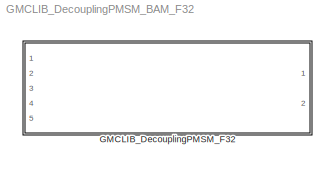
MODEL GMCLIB_DecouplingPMSM_BAM_F32
KIND model
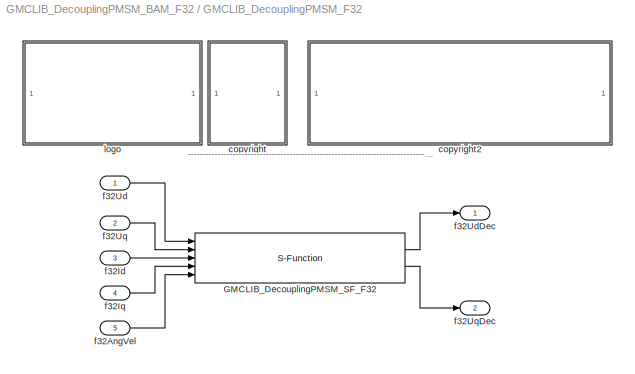
BLOCK [SubSystem] GMCLIB_DecouplingPMSM_F32
  FunctionWithSeparateData = off
  MaskCallbackString = |||
  MaskDescription = Bit accurate model of decoupling for PMSM model.
  MaskDisplay = color('black');port_label('input',1,'f32Ud');port_label('input',2,'f32Uq');port_label('input',3,'f32Id');port_label('input',4,'f32Iq');port_label('input',5,'f32AngVel');port_label('output',1,'f32UdDec');port_label('output',2,'f32UqDec');color('black');disp('GMCLIB_DecouplingPMSM_F32');color('blue');text(tX,tY, 'BAM', 'horizontalAlignment', 'center');
  MaskEnableString = on,on,on,on
  MaskHideContents = off
  MaskIconFrame = on
  MaskIconOpaque = on
  MaskIconRotate = none
  MaskIconUnits = pixels
  MaskInitialization = pos = get_param(gcb, 'Position');width = pos(3) - pos(1); height = pos(4) - pos(2);tX=width/2;tY=height*0.9;
  MaskPortRotate = default
  MaskPromptString = f32Kd|s16KdShift|f32Kq|s16KqShift
  MaskStyleString = edit,edit,edit,edit
  MaskTabNameString = ,,,
  MaskToolTipString = on,on,on,on
  MaskTunableValueString = on,on,on,on
  MaskType = GMCLIB_DecouplingPMSM_F32
  MaskValueString = f32Kd|s16KdShift|f32Kq|s16KqShift
  MaskVarAliasString = ,,,
  MaskVariables = f32Kd=@1;s16KdShift=@2;f32Kq=@3;s16KqShift=@4;
  MaskVisibilityString = on,on,on,on
  MinAlgLoopOccurrences = off
  Opaque = off
  Ports = [5, 2]
  PropExecContextOutsideSubsystem = off
  RTWSystemCode = Auto
  RequestExecContextInheritance = off
BLOCK [S-Function] GMCLIB_DecouplingPMSM_F32/GMCLIB_DecouplingPMSM_SF_F32
  EnableBusSupport = off
  FunctionName = GMCLIB_DecouplingPMSM_SF_F32
  Parameters = f32Kd,s16KdShift,f32Kq,s16KqShift
  Ports = [5, 2]
BLOCK [SubSystem] GMCLIB_DecouplingPMSM_F32/<copyright redacted>
  FunctionWithSeparateData = off
  MaskDisplay = text(10,90,'FILE:');text(10,75,'DESRIPTION:')text(10,60,'<copyright redacted>
  MaskHideContents = off
  MaskIconFrame = off
  MaskIconOpaque = on
  MaskIconRotate = none
  MaskIconUnits = pixels
  MaskPortRotate = default
  MinAlgLoopOccurrences = off
  Opaque = off
  Ports = []
  PropExecContextOutsideSubsystem = off
  RTWSystemCode = Auto
  RequestExecContextInheritance = off
BLOCK [SubSystem] GMCLIB_DecouplingPMSM_F32/copyright2
  FunctionWithSeparateData = off
  MaskDisplay = text(10,90,'GMCLIB_DecouplingPMSM_BAM_F32.mdl');text(10,75,'Decoupling of d and q axis of PMSM model.');text(10,60,'Freescale')text(10,45,'0.1');text(10,30,'14-Sep-2011');
  MaskHideContents = off
  MaskIconFrame = off
  MaskIconOpaque = on
  MaskIconRotate = none
  MaskIconUnits = pixels
  MaskPortRotate = default
  MinAlgLoopOccurrences = off
  Opaque = off
  Ports = []
  PropExecContextOutsideSubsystem = off
  RTWSystemCode = Auto
  RequestExecContextInheritance = off
BLOCK [Inport] GMCLIB_DecouplingPMSM_F32/f32AngVel
  IconDisplay = Port number
  OutDataType = fixdt(1, 16)
  OutScaling = 2^0
  Port = 5
BLOCK [Inport] GMCLIB_DecouplingPMSM_F32/f32Id
  IconDisplay = Port number
  OutDataType = fixdt(1, 16)
  OutScaling = 2^0
  Port = 3
BLOCK [Inport] GMCLIB_DecouplingPMSM_F32/f32Iq
  IconDisplay = Port number
  OutDataType = fixdt(1, 16)
  OutScaling = 2^0
  Port = 4
BLOCK [Inport] GMCLIB_DecouplingPMSM_F32/f32Ud
  IconDisplay = Port number
  OutDataType = fixdt(1, 16)
  OutScaling = 2^0
BLOCK [Outport] GMCLIB_DecouplingPMSM_F32/f32UdDec
  IconDisplay = Port number
  OutDataType = fixdt(1, 16)
  OutScaling = 2^0
BLOCK [Inport] GMCLIB_DecouplingPMSM_F32/f32Uq
  IconDisplay = Port number
  OutDataType = fixdt(1, 16)
  OutScaling = 2^0
  Port = 2
BLOCK [Outport] GMCLIB_DecouplingPMSM_F32/f32UqDec
  IconDisplay = Port number
  OutDataType = fixdt(1, 16)
  OutScaling = 2^0
  Port = 2
BLOCK [SubSystem] GMCLIB_DecouplingPMSM_F32/logo
  FunctionWithSeparateData = off
  MaskDisplay = image(imread('logo.jpg'))
  MaskHideContents = off
  MaskIconFrame = off
  MaskIconOpaque = on
  MaskIconRotate = none
  MaskIconUnits = autoscale
  MaskPortRotate = default
  MinAlgLoopOccurrences = off
  Opaque = off
  Ports = []
  PropExecContextOutsideSubsystem = off
  RTWSystemCode = Auto
  RequestExecContextInheritance = off
ANNOTATION GMCLIB_DecouplingPMSM_F32: ---------------------------------------------------------------------------------------------------------------------------------------------------------------------------------------------------
LINE GMCLIB_DecouplingPMSM_F32/GMCLIB_DecouplingPMSM_SF_F32:1 -> GMCLIB_DecouplingPMSM_F32/f32UdDec:1
LINE GMCLIB_DecouplingPMSM_F32/GMCLIB_DecouplingPMSM_SF_F32:2 -> GMCLIB_DecouplingPMSM_F32/f32UqDec:1
LINE GMCLIB_DecouplingPMSM_F32/f32AngVel:1 -> GMCLIB_DecouplingPMSM_F32/GMCLIB_DecouplingPMSM_SF_F32:5
LINE GMCLIB_DecouplingPMSM_F32/f32Id:1 -> GMCLIB_DecouplingPMSM_F32/GMCLIB_DecouplingPMSM_SF_F32:3
LINE GMCLIB_DecouplingPMSM_F32/f32Iq:1 -> GMCLIB_DecouplingPMSM_F32/GMCLIB_DecouplingPMSM_SF_F32:4
LINE GMCLIB_DecouplingPMSM_F32/f32Ud:1 -> GMCLIB_DecouplingPMSM_F32/GMCLIB_DecouplingPMSM_SF_F32:1
LINE GMCLIB_DecouplingPMSM_F32/f32Uq:1 -> GMCLIB_DecouplingPMSM_F32/GMCLIB_DecouplingPMSM_SF_F32:2
